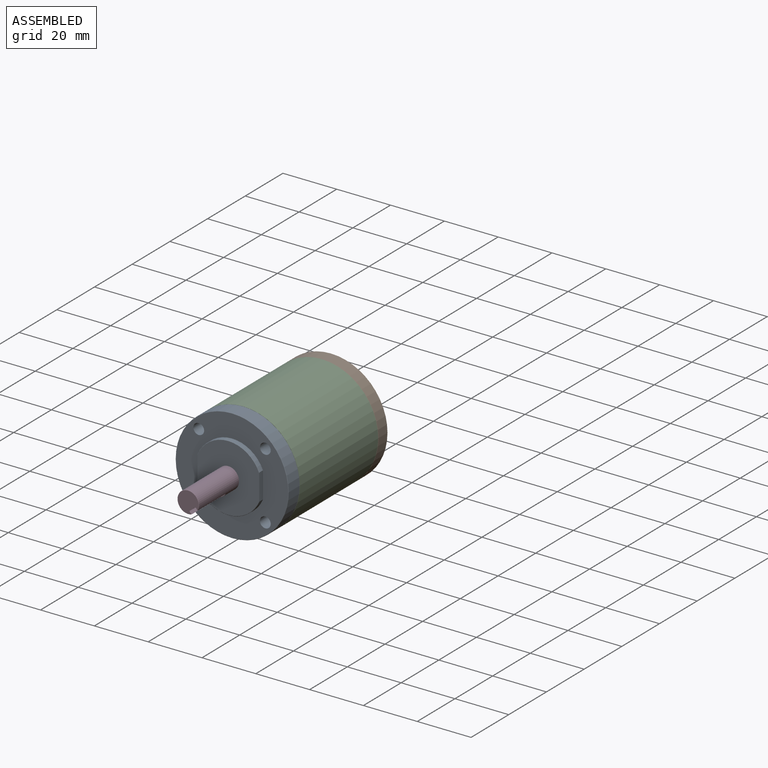
[diagram: assembled view]
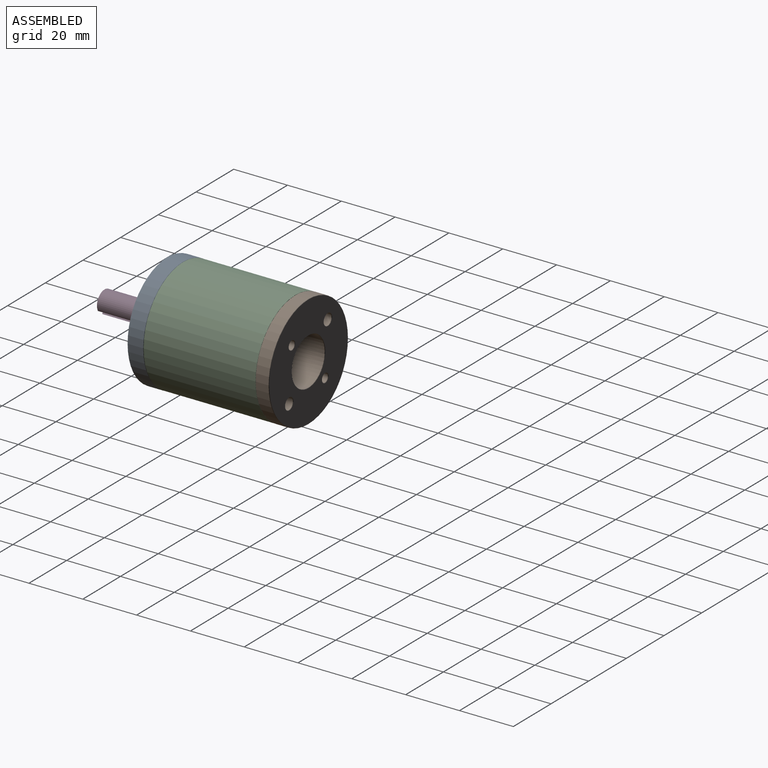
[diagram: assembled view, second angle]
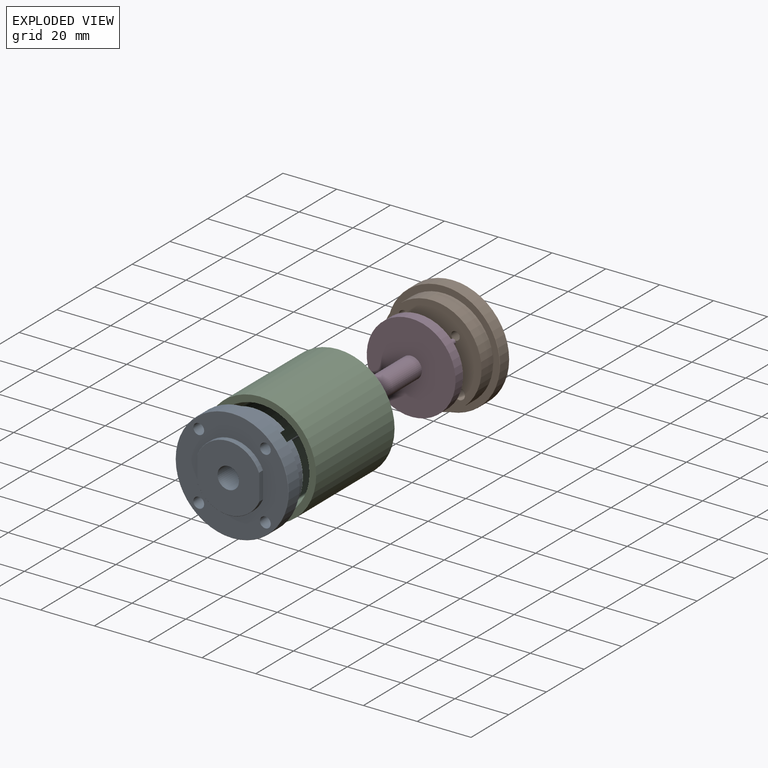
[diagram: exploded view]
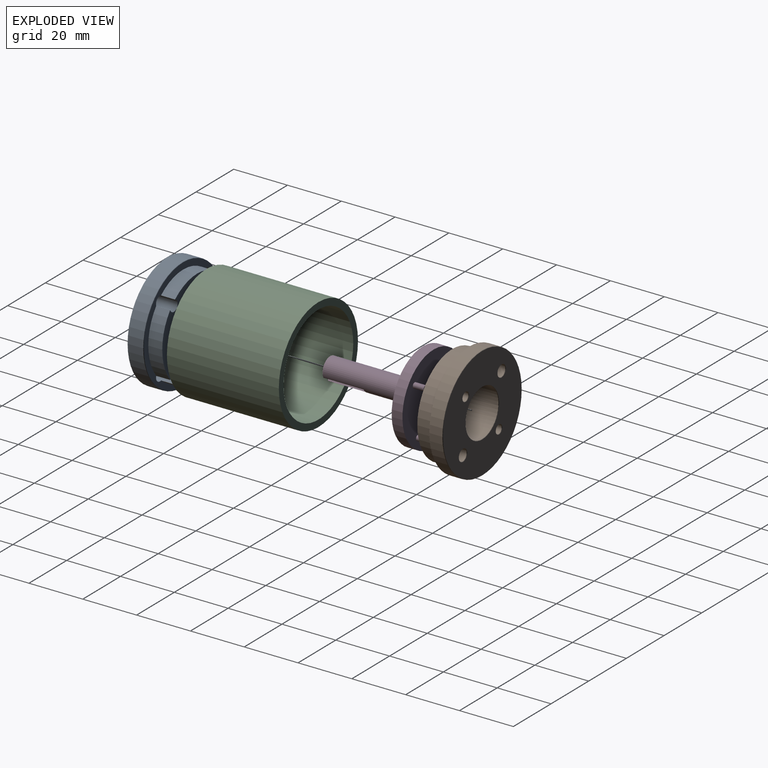
[diagram: exploded view, second angle]
ASSEMBLY  parts=4 mates=3
PART A: 22 faces, bbox 42x13.2x42 mm
  f0: cylinder r=18.5mm len=23.53mm, axis (0,-1,0), area 132.6mm2, adj f7,f16,f18,f20
  f1: cylinder r=18.5mm len=23.53mm, axis (0,-1,0), area 132.6mm2, adj f7,f16,f17,f19
  f2: cylinder r=18.5mm len=23.53mm, axis (0,-1,0), area 132.6mm2, adj f7,f16,f18,f19
  f3: cylinder r=12.5mm len=23mm, axis (0,1,0), area 55.5mm2, adj f8,f9,f10,f12
  f4: cylinder r=12.5mm len=23mm, axis (0,1,0), area 55.5mm2, adj f8,f9,f10,f13
  f5: plane 24.8x23mm, normal (0,-1,0), area 421.6mm2, adj f9,f10,f12,f13,f21
  f6: cylinder r=21mm len=42mm, axis (0,-1,0), area 765.3mm2, adj f11,f14
  f7: plane 41.8x41.8mm, normal (0,1,0), area 286.9mm2, adj f0,f1,f2,f11,f15,f17,f18,f19
  f8: plane 41.8x41.8mm, normal (0,-1,0), area 844.3mm2, adj f3,f4,f9,f10,f14,f17,f18,f19
  f9: plane 9.8x2mm, normal (-1,0,0), area 19.6mm2, adj f3,f4,f5,f8,f12,f13
  f10: plane 9.8x2mm, normal (1,0,0), area 19.6mm2, adj f3,f4,f5,f8,f12,f13
  f11: cone r=21mm half-angle=45deg, axis (0,-1,0), area 18.6mm2, adj f6,f7
  f12: cone r=12.4mm half-angle=45deg, axis (0,1,0), area 4.1mm2, adj f3,f5,f9,f10
  f13: cone r=12.4mm half-angle=45deg, axis (0,1,0), area 4.1mm2, adj f4,f5,f9,f10
  f14: cone r=20.9mm half-angle=45deg, axis (0,1,0), area 18.6mm2, adj f6,f8
  f15: cylinder r=18.5mm len=23.53mm, axis (0,-1,0), area 132.6mm2, adj f7,f16,f17,f20
  f16: plane 37x37mm, normal (0,1,0), area 984.9mm2, adj f0,f1,f2,f15,f17,f18,f19,f20
  f17: cylinder r=2mm len=11.2mm, axis (0,-1,0), area 117.9mm2, adj f1,f7,f8,f15,f16
  f18: cylinder r=2mm len=11.2mm, axis (0,-1,0), area 117.9mm2, adj f0,f2,f7,f8,f16
  f19: cylinder r=2mm len=11.2mm, axis (0,-1,0), area 117.9mm2, adj f1,f2,f7,f8,f16
  f20: cylinder r=2mm len=11.2mm, axis (0,-1,0), area 117.9mm2, adj f0,f7,f8,f15,f16
  f21: cylinder r=4mm len=13.2mm, axis (0,-1,0), area 331.8mm2, adj f5,f16
PART B: 17 faces, bbox 42x11.2x42 mm
  f0: cylinder r=21mm len=42mm, axis (0,-1,0), area 633.3mm2, adj f10,f16
  f1: plane 41.8x41.8mm, normal (0,1,0), area 1077.7mm2, adj f11,f12,f13,f14,f15,f16
  f2: plane 41.8x41.8mm, normal (0,-1,0), area 297.1mm2, adj f3,f10
  f3: cylinder r=18.5mm len=37mm, axis (0,1,0), area 720.7mm2, adj f2,f4
  f4: plane 37x37mm, normal (0,-1,0), area 790.9mm2, adj f3,f5,f6,f7,f8,f9
  f5: cylinder r=1.6mm len=11.1mm, axis (0,1,0), area 111.6mm2, adj f4,f15
  f6: cylinder r=2.1mm len=11.1mm, axis (0,1,0), area 146.5mm2, adj f4,f12
  f7: cylinder r=8.75mm len=17.5mm, axis (0,1,0), area 610.3mm2, adj f4,f11
  f8: cylinder r=1.6mm len=11.1mm, axis (0,1,0), area 111.6mm2, adj f4,f13
  f9: cylinder r=2.1mm len=11.1mm, axis (0,1,0), area 146.5mm2, adj f4,f14
  f10: cone r=20.9mm half-angle=45deg, axis (0,1,0), area 18.6mm2, adj f0,f2
  f11: cone r=8.85mm half-angle=45deg, axis (0,1,0), area 7.8mm2, adj f1,f7
  f12: cone r=2.2mm half-angle=45deg, axis (0,1,0), area 1.9mm2, adj f1,f6
  f13: cone r=1.7mm half-angle=45deg, axis (0,1,0), area 1.5mm2, adj f1,f8
  f14: cone r=2.2mm half-angle=45deg, axis (0,1,0), area 1.9mm2, adj f1,f9
  f15: cone r=1.7mm half-angle=45deg, axis (0,1,0), area 1.5mm2, adj f1,f5
  f16: cone r=21mm half-angle=45deg, axis (0,-1,0), area 18.6mm2, adj f0,f1
PART C: 4 faces, bbox 42x41.6x42 mm
  f0: cylinder r=18.5mm len=41.6mm, axis (0,1,0), area 4835.5mm2, adj f2,f3
  f1: cylinder r=21mm len=42mm, axis (0,1,0), area 5489mm2, adj f2,f3
  f2: plane 42x42mm, normal (0,-1,0), area 310.2mm2, adj f0,f1
  f3: plane 42x42mm, normal (0,1,0), area 310.2mm2, adj f0,f1
PART D: 18 faces, bbox 33x42.5x33 mm
  f0: cylinder r=4mm len=34.4mm, axis (0,-1,0), area 818.7mm2, adj f2,f5,f14,f16,f17
  f1: plane 7.8x7.5mm, normal (0,-1,0), area 43.9mm2, adj f2,f14,f15,f16
  f2: cone r=3.9mm half-angle=45deg, axis (0,1,0), area 3.1mm2, adj f0,f1,f14,f16
  f3: cylinder r=16.5mm len=33mm, axis (0,-1,0), area 414.7mm2, adj f4,f5
  f4: plane 33x33mm, normal (0,1,0), area 842.7mm2, adj f3,f6,f8,f10,f12
  f5: plane 33x33mm, normal (0,-1,0), area 805mm2, adj f0,f3
  f6: cylinder r=1mm len=4mm, axis (0,-1,0), area 25.1mm2, adj f4,f7
  f7: plane 2x2mm, normal (0,1,0), area 3.1mm2, adj f6
  f8: cylinder r=1mm len=4mm, axis (0,-1,0), area 25.1mm2, adj f4,f9
  f9: plane 2x2mm, normal (0,1,0), area 3.1mm2, adj f8
  f10: cylinder r=1mm len=4mm, axis (0,-1,0), area 25.1mm2, adj f4,f11
  f11: plane 2x2mm, normal (0,1,0), area 3.1mm2, adj f10
  f12: cylinder r=1mm len=4mm, axis (0,-1,0), area 25.1mm2, adj f4,f13
  f13: plane 2x2mm, normal (0,1,0), area 3.1mm2, adj f12
  f14: plane 15x1.21mm, normal (1,0,0), area 18.1mm2, adj f0,f1,f2,f15,f17
  f15: plane 15x3mm, normal (0,0,1), area 45mm2, adj f1,f14,f16,f17
  f16: plane 15x1.21mm, normal (-1,0,0), area 18.1mm2, adj f0,f1,f2,f15,f17
  f17: plane 3x1.5mm, normal (0,-1,0), area 4.2mm2, adj f0,f14,f15,f16
PLACE A t=(-0.09,-26.79,0.09)mm
PLACE B t=(-0.09,20.81,0.09)mm
PLACE C t=(-0.09,0.01,0.09)mm fixed
PLACE D rot(axis=(0,1,0),140.2deg) t=(-0.09,-50.09,0.09)mm
MATE fastened B.f0 <-> C.f0  axis (0,-1,0) through (-0.09,20.81,0.09)mm
MATE fastened A.f0 <-> C.f0  axis (0,1,0) through (-0.09,-20.79,0.09)mm
MATE revolute D.f0 <-> A.f0  axis (0,-1,0) through (-0.09,-15.59,0.09)mm
